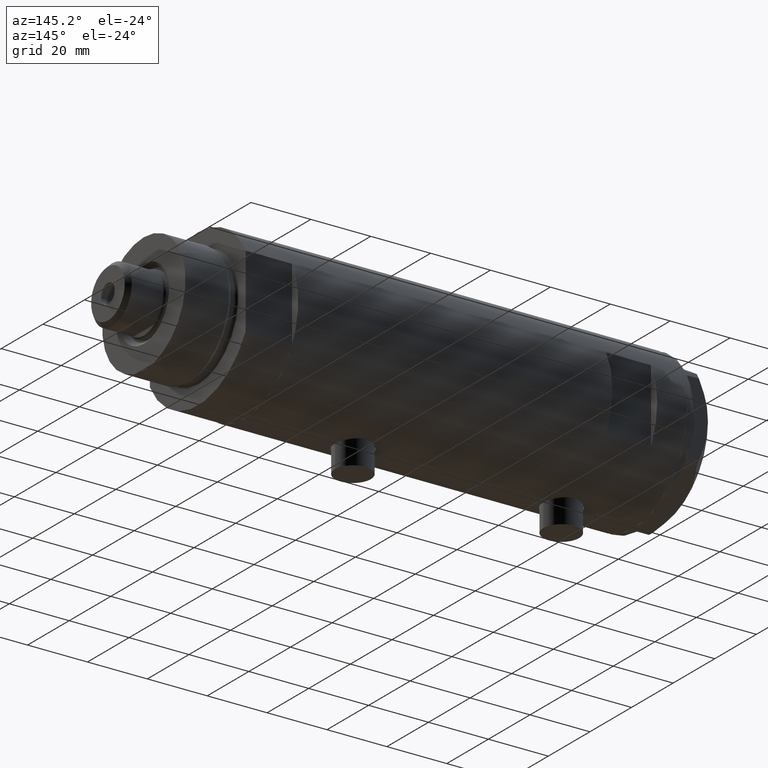
[diagram: clean part render]
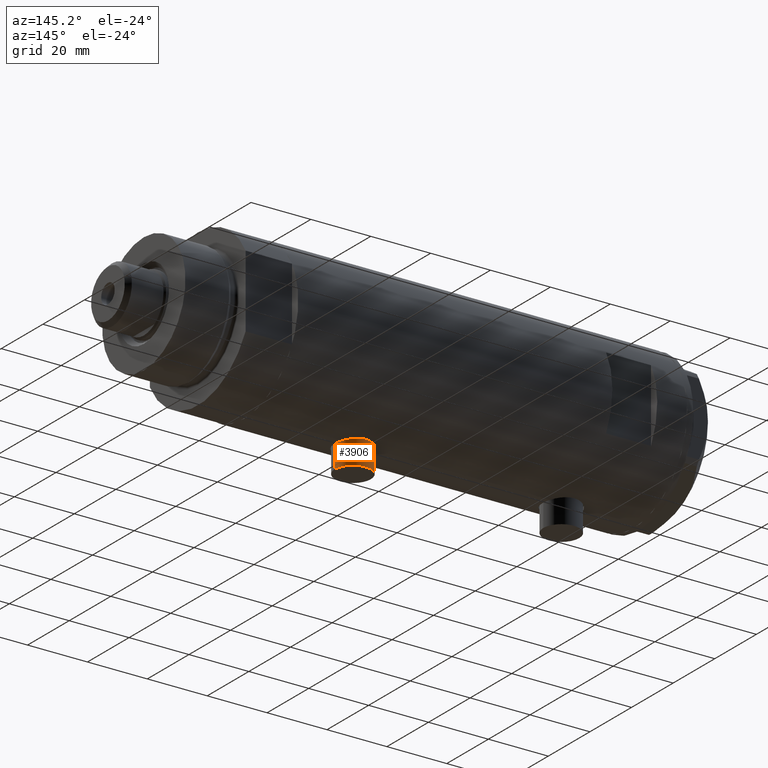
[diagram: same view with one face highlighted and labeled with its STEP entity id]
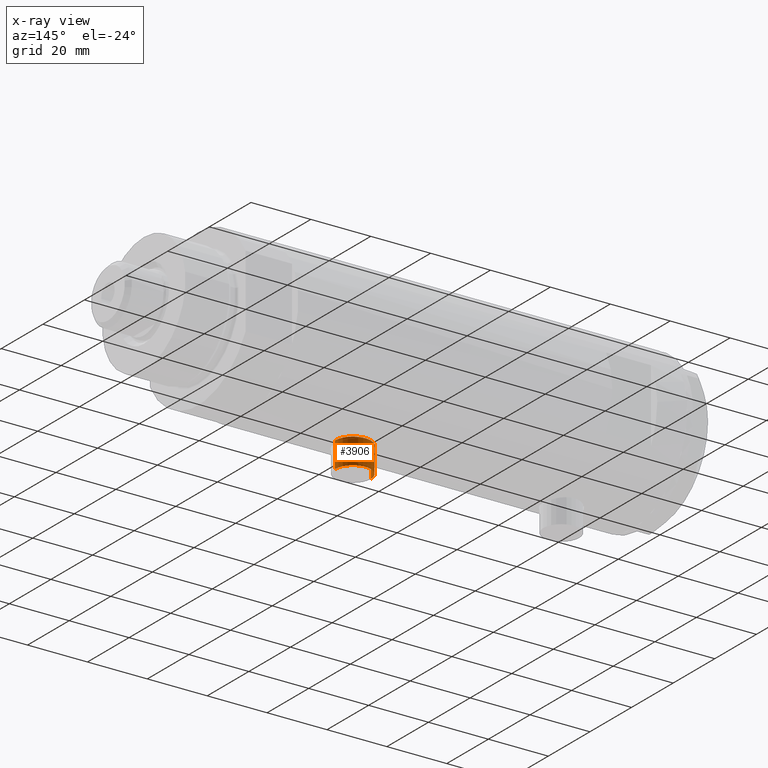
[diagram: x-ray of the same camera — body ghosted, the highlighted face saturated]
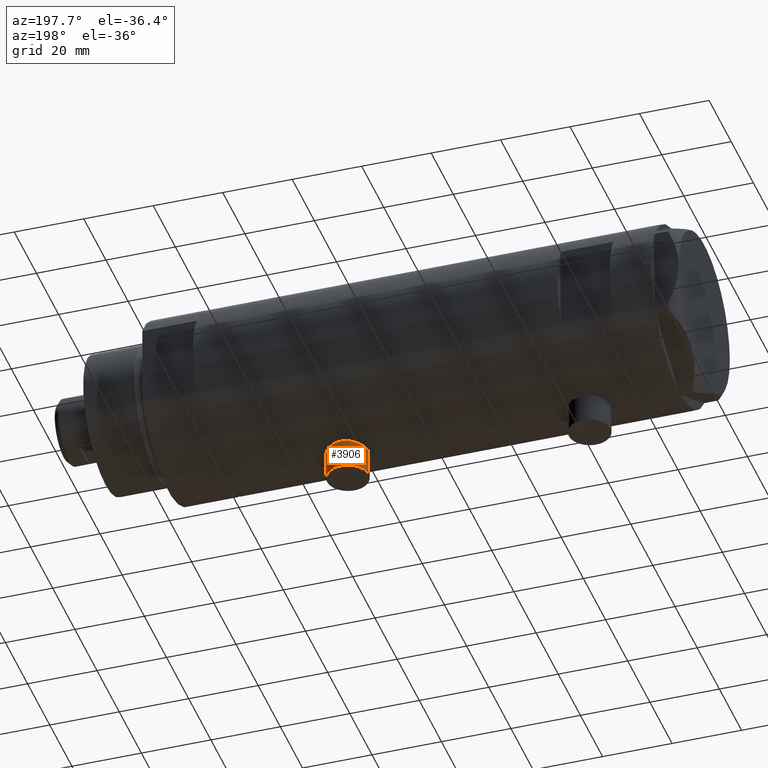
[diagram: same view with one face highlighted and labeled with its STEP entity id]
A machine part, auxiliary view. The second image highlights one B-rep face of the part: STEP entity #3906.
The next image is the same camera in x-ray: the body ghosted, the highlighted face saturated — about 0% of this face is hidden behind the body in this view.
A second angle (auxiliary view) of the same face is appended — the face is thin or edge-on in the first view.
In plain terms, the highlighted cylindrical surface (edge-blend (fillet) strip) has radius 6 mm, axis along (0, 0, 1).
Its self-contained STEP definition (entity closure, byte-faithful):
#287 = DIRECTION ( 'NONE',  ( 0.000000000000000000, 0.000000000000000000, 1.000000000000000000 ) ) ;
#325 = CIRCLE ( 'NONE', #3766, 6.000000000000001776 ) ;
#519 = DIRECTION ( 'NONE',  ( 0.000000000000000000, 0.000000000000000000, 1.000000000000000000 ) ) ;
#788 = CARTESIAN_POINT ( 'NONE',  ( -24.80000000000000426, 0.000000000000000000, -28.65000000000000924 ) ) ;
#929 = CARTESIAN_POINT ( 'NONE',  ( -24.80000000000000426, 7.347880794884123680E-16, -22.65000000000000213 ) ) ;
#956 = VERTEX_POINT ( 'NONE', #3221 ) ;
#1427 = EDGE_CURVE ( 'NONE', #3905, #956, #2674, .T. ) ;
#1614 = ORIENTED_EDGE ( 'NONE', *, *, #1427, .T. ) ;
#1679 = LINE ( 'NONE', #1700, #1736 ) ;
#1700 = CARTESIAN_POINT ( 'NONE',  ( -33.39999999999999858, 7.347880794884121708E-16, -22.65000000000000568 ) ) ;
#1704 = CARTESIAN_POINT ( 'NONE',  ( -33.39999999999999858, 0.000000000000000000, -34.65000000000001279 ) ) ;
#1719 = LINE ( 'NONE', #3216, #2136 ) ;
#1729 = DIRECTION ( 'NONE',  ( -1.000000000000000000, 0.000000000000000000, 0.000000000000000000 ) ) ;
#1736 = VECTOR ( 'NONE', #3736, 1000.000000000000000 ) ;
#2119 = CARTESIAN_POINT ( 'NONE',  ( -33.39999999999999858, 7.347880794884123680E-16, -22.65000000000000213 ) ) ;
#2136 = VECTOR ( 'NONE', #3566, 1000.000000000000000 ) ;
#2161 = EDGE_CURVE ( 'NONE', #4138, #3905, #1679, .T. ) ;
#2201 = ORIENTED_EDGE ( 'NONE', *, *, #3563, .F. ) ;
#2314 = VERTEX_POINT ( 'NONE', #1704 ) ;
#2440 = CYLINDRICAL_SURFACE ( 'NONE', #3696, 6.000000000000005329 ) ;
#2674 = CIRCLE ( 'NONE', #3207, 6.000000000000001776 ) ;
#2935 = EDGE_LOOP ( 'NONE', ( #2201, #3262, #1614, #4321 ) ) ;
#3207 = AXIS2_PLACEMENT_3D ( 'NONE', #788, #3869, #519 ) ;
#3216 = CARTESIAN_POINT ( 'NONE',  ( -33.39999999999999858, 0.000000000000000000, -34.65000000000001279 ) ) ;
#3221 = CARTESIAN_POINT ( 'NONE',  ( -24.80000000000000426, 0.000000000000000000, -34.65000000000001279 ) ) ;
#3227 = CARTESIAN_POINT ( 'NONE',  ( -33.39999999999999858, 0.000000000000000000, -28.65000000000000924 ) ) ;
#3262 = ORIENTED_EDGE ( 'NONE', *, *, #2161, .T. ) ;
#3563 = EDGE_CURVE ( 'NONE', #4138, #2314, #325, .T. ) ;
#3566 = DIRECTION ( 'NONE',  ( 1.000000000000000000, -0.000000000000000000, -0.000000000000000000 ) ) ;
#3696 = AXIS2_PLACEMENT_3D ( 'NONE', #3886, #4667, #4192 ) ;
#3736 = DIRECTION ( 'NONE',  ( 1.000000000000000000, -0.000000000000000000, -0.000000000000000000 ) ) ;
#3766 = AXIS2_PLACEMENT_3D ( 'NONE', #3227, #1729, #287 ) ;
#3869 = DIRECTION ( 'NONE',  ( -1.000000000000000000, 0.000000000000000000, 0.000000000000000000 ) ) ;
#3886 = CARTESIAN_POINT ( 'NONE',  ( -33.39999999999999858, 0.000000000000000000, -28.65000000000000924 ) ) ;
#3905 = VERTEX_POINT ( 'NONE', #929 ) ;
#3906 = ADVANCED_FACE ( 'NONE', ( #4566 ), #2440, .T. ) ;
#4060 = EDGE_CURVE ( 'NONE', #2314, #956, #1719, .T. ) ;
#4138 = VERTEX_POINT ( 'NONE', #2119 ) ;
#4192 = DIRECTION ( 'NONE',  ( 0.000000000000000000, 0.000000000000000000, -1.000000000000000000 ) ) ;
#4321 = ORIENTED_EDGE ( 'NONE', *, *, #4060, .F. ) ;
#4566 = FACE_OUTER_BOUND ( 'NONE', #2935, .T. ) ;
#4667 = DIRECTION ( 'NONE',  ( 1.000000000000000000, -0.000000000000000000, -0.000000000000000000 ) ) ;